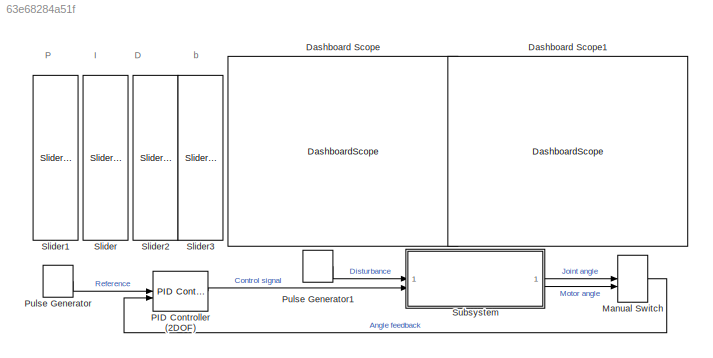
MODEL slx_63e68284a51f
KIND model
CONFIG AbsTol = 1e-3
CONFIG EnableMultiTasking = off
CONFIG FixedStep = auto
CONFIG MaxStep = auto
CONFIG MinStep = auto
CONFIG RelTol = 1e-3
CONFIG SampleTimeConstraint = Unconstrained
CONFIG SolverName = VariableStepAuto
CONFIG StartTime = 0.0
CONFIG StopTime = 30
BLOCK [DashboardScope] Dashboard Scope
BLOCK [DashboardScope] Dashboard Scope1
BLOCK [ManualSwitch] Manual Switch
  CurrentSetting = 0
BLOCK [Reference] PID Controller (2DOF)  REF=slpidlib/PID Controller (2DOF)
  LibrarySourceBlock = simulink/Continuous/PID Controller (2DOF)
  SourceBlock = slpidlib/PID Controller (2DOF)
  SourceType = PID 2dof
BLOCK [DiscretePulseGenerator] Pulse Generator
  Period = 40
  PulseType = Time based
  PulseWidth = 25
BLOCK [DiscretePulseGenerator] Pulse Generator1
  Amplitude = 10
  Period = 40
  PhaseDelay = 20
  PulseType = Time based
  PulseWidth = 25
BLOCK [SliderBlock] Slider
  LabelPosition = Hide
  NameLocation = left
  ScaleMax = 5
  TickInterval = 1
BLOCK [SliderBlock] Slider1
  LabelPosition = Hide
  NameLocation = left
  ScaleMax = 5
  TickInterval = 1
BLOCK [SliderBlock] Slider2
  LabelPosition = Hide
  NameLocation = left
  ScaleMax = 5
  TickInterval = 1
BLOCK [SliderBlock] Slider3
  LabelPosition = Hide
  NameLocation = left
  ScaleMax = 1
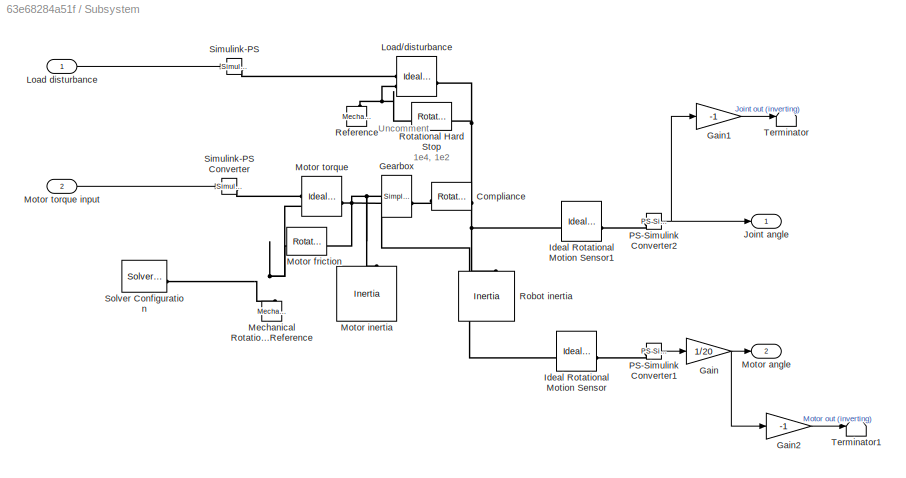
BLOCK [SubSystem] Subsystem
BLOCK [Reference] Subsystem/Compliance  REF=fl_lib/Mechanical/Rotational Elements/Rotational Spring
  SourceBlock = fl_lib/Mechanical/Rotational Elements/Rotational Spring
  SourceType = Rotational Spring
BLOCK [Gain] Subsystem/Gain
  Gain = 1/20
BLOCK [Gain] Subsystem/Gain1
  Gain = -1
BLOCK [Gain] Subsystem/Gain2
  Gain = -1
BLOCK [Reference] Subsystem/Gearbox  REF=sdl_lib/Gears/Simple Gear
  SourceBlock = sdl_lib/Gears/Simple Gear
  SourceType = Simple Gear
BLOCK [Reference] Subsystem/Ideal Rotational Motion Sensor  REF=fl_lib/Mechanical/Mechanical Sensors/Ideal Rotational
Motion Sensor
  SourceBlock = fl_lib/Mechanical/Mechanical Sensors/Ideal Rotational\nMotion Sensor
  SourceType = Ideal Rotational\nMotion Sensor
BLOCK [Reference] Subsystem/Ideal Rotational Motion Sensor1  REF=fl_lib/Mechanical/Mechanical Sensors/Ideal Rotational
Motion Sensor
  SourceBlock = fl_lib/Mechanical/Mechanical Sensors/Ideal Rotational\nMotion Sensor
  SourceType = Ideal Rotational\nMotion Sensor
BLOCK [Outport] Subsystem/Joint angle
BLOCK [Inport] Subsystem/Load disturbance
BLOCK [Reference] Subsystem/Load//disturbance  REF=fl_lib/Mechanical/Mechanical Sources/Ideal Torque Source
  NameLocation = top
  SourceBlock = fl_lib/Mechanical/Mechanical Sources/Ideal Torque Source
  SourceType = Ideal Torque Source
BLOCK [Reference] Subsystem/Mechanical Rotational Reference  REF=fl_lib/Mechanical/Rotational Elements/Mechanical
Rotational Reference
  SourceBlock = fl_lib/Mechanical/Rotational Elements/Mechanical\nRotational Reference
  SourceType = Mechanical\nRotational Reference
BLOCK [Outport] Subsystem/Motor angle
  Port = 2
BLOCK [Reference] Subsystem/Motor friction  REF=fl_lib/Mechanical/Rotational Elements/Rotational Damper
  SourceBlock = fl_lib/Mechanical/Rotational Elements/Rotational Damper
  SourceType = Rotational Damper
BLOCK [Reference] Subsystem/Motor inertia  REF=fl_lib/Mechanical/Rotational Elements/Inertia
  NameLocation = right
  SourceBlock = fl_lib/Mechanical/Rotational Elements/Inertia
  SourceType = Inertia
BLOCK [Reference] Subsystem/Motor torque  REF=fl_lib/Mechanical/Mechanical Sources/Ideal Torque Source
  NameLocation = top
  SourceBlock = fl_lib/Mechanical/Mechanical Sources/Ideal Torque Source
  SourceType = Ideal Torque Source
BLOCK [Inport] Subsystem/Motor torque input
  Port = 2
BLOCK [Reference] Subsystem/PS-Simulink Converter1  REF=nesl_utility/PS-Simulink
Converter
  SourceBlock = nesl_utility/PS-Simulink\nConverter
  SourceType = PS-Simulink\nConverter
BLOCK [Reference] Subsystem/PS-Simulink Converter2  REF=nesl_utility/PS-Simulink
Converter
  SourceBlock = nesl_utility/PS-Simulink\nConverter
  SourceType = PS-Simulink\nConverter
BLOCK [Reference] Subsystem/Reference  REF=fl_lib/Mechanical/Rotational Elements/Mechanical
Rotational Reference
  SourceBlock = fl_lib/Mechanical/Rotational Elements/Mechanical\nRotational Reference
  SourceType = Mechanical\nRotational Reference
BLOCK [Reference] Subsystem/Robot inertia  REF=fl_lib/Mechanical/Rotational Elements/Inertia
  NameLocation = right
  SourceBlock = fl_lib/Mechanical/Rotational Elements/Inertia
  SourceType = Inertia
BLOCK [Reference] Subsystem/Rotational Hard Stop  REF=fl_lib/Mechanical/Rotational Elements/Rotational Hard Stop
  Commented = on
  SourceBlock = fl_lib/Mechanical/Rotational Elements/Rotational Hard Stop
  SourceType = Rotational Hard Stop
BLOCK [Reference] Subsystem/Simulink-PS   REF=nesl_utility/Simulink-PS
Converter
  SourceBlock = nesl_utility/Simulink-PS\nConverter
  SourceType = Simulink-PS\nConverter
BLOCK [Reference] Subsystem/Simulink-PS Converter  REF=nesl_utility/Simulink-PS
Converter
  SourceBlock = nesl_utility/Simulink-PS\nConverter
  SourceType = Simulink-PS\nConverter
BLOCK [Reference] Subsystem/Solver Configuration  REF=nesl_utility/Solver
Configuration
  SourceBlock = nesl_utility/Solver\nConfiguration
  SourceType = Solver\nConfiguration
BLOCK [Terminator] Subsystem/Terminator
BLOCK [Terminator] Subsystem/Terminator1
ANNOTATION (root): D
ANNOTATION (root): I
ANNOTATION (root): P
ANNOTATION (root): b
ANNOTATION Subsystem: 1e4, 1e2
ANNOTATION Subsystem: Uncomment
LINE Manual Switch:1 -> PID Controller (2DOF):2
LINE PID Controller (2DOF):1 -> Subsystem:2
LINE Pulse Generator1:1 -> Subsystem:1
LINE Pulse Generator:1 -> PID Controller (2DOF):1
LINE Subsystem/Gain1:1 -> Subsystem/Terminator:1
LINE Subsystem/Gain2:1 -> Subsystem/Terminator1:1
NET Subsystem/Gain:1 -> Subsystem/Gain2:1, Subsystem/Motor angle:1
LINE Subsystem/Load disturbance:1 -> Subsystem/Simulink-PS :1
LINE Subsystem/Motor torque input:1 -> Subsystem/Simulink-PS Converter:1
LINE Subsystem/PS-Simulink Converter1:1 -> Subsystem/Gain:1
NET Subsystem/PS-Simulink Converter2:1 -> Subsystem/Gain1:1, Subsystem/Joint angle:1
LINE Subsystem:1 -> Manual Switch:1
LINE Subsystem:2 -> Manual Switch:2
PNET net1: Subsystem/Compliance:LConn1 -- Subsystem/Ideal Rotational Motion Sensor1:LConn1 -- Subsystem/Load//disturbance:LConn1 -- Subsystem/Robot inertia:LConn1 -- Subsystem/Rotational Hard Stop:LConn1
PLINE Subsystem/Compliance:RConn1 -- Subsystem/Gearbox:RConn1
PNET net2: Subsystem/Gearbox:LConn1 -- Subsystem/Ideal Rotational Motion Sensor:LConn1 -- Subsystem/Motor friction:LConn1 -- Subsystem/Motor inertia:LConn1 -- Subsystem/Motor torque:LConn1
PLINE Subsystem/Ideal Rotational Motion Sensor1:RConn1 -- Subsystem/PS-Simulink Converter2:LConn1
PLINE Subsystem/Ideal Rotational Motion Sensor:RConn1 -- Subsystem/PS-Simulink Converter1:LConn1
PLINE Subsystem/Load//disturbance:RConn1 -- Subsystem/Simulink-PS :RConn1
PNET net3: Subsystem/Load//disturbance:RConn2 -- Subsystem/Reference:LConn1 -- Subsystem/Rotational Hard Stop:RConn1
PNET net4: Subsystem/Mechanical Rotational Reference:LConn1 -- Subsystem/Motor friction:RConn1 -- Subsystem/Motor torque:RConn2 -- Subsystem/Solver Configuration:RConn1
PLINE Subsystem/Motor torque:RConn1 -- Subsystem/Simulink-PS Converter:RConn1
note: NET lines group one-source signal fan-out (src -> all destinations, sorted); 1:1 wires keep LINE; PNET lines group multi-terminal physical nets as a canonical sorted terminal list (undirected conserving connections); 2-terminal nets keep the pairwise PLINE form
